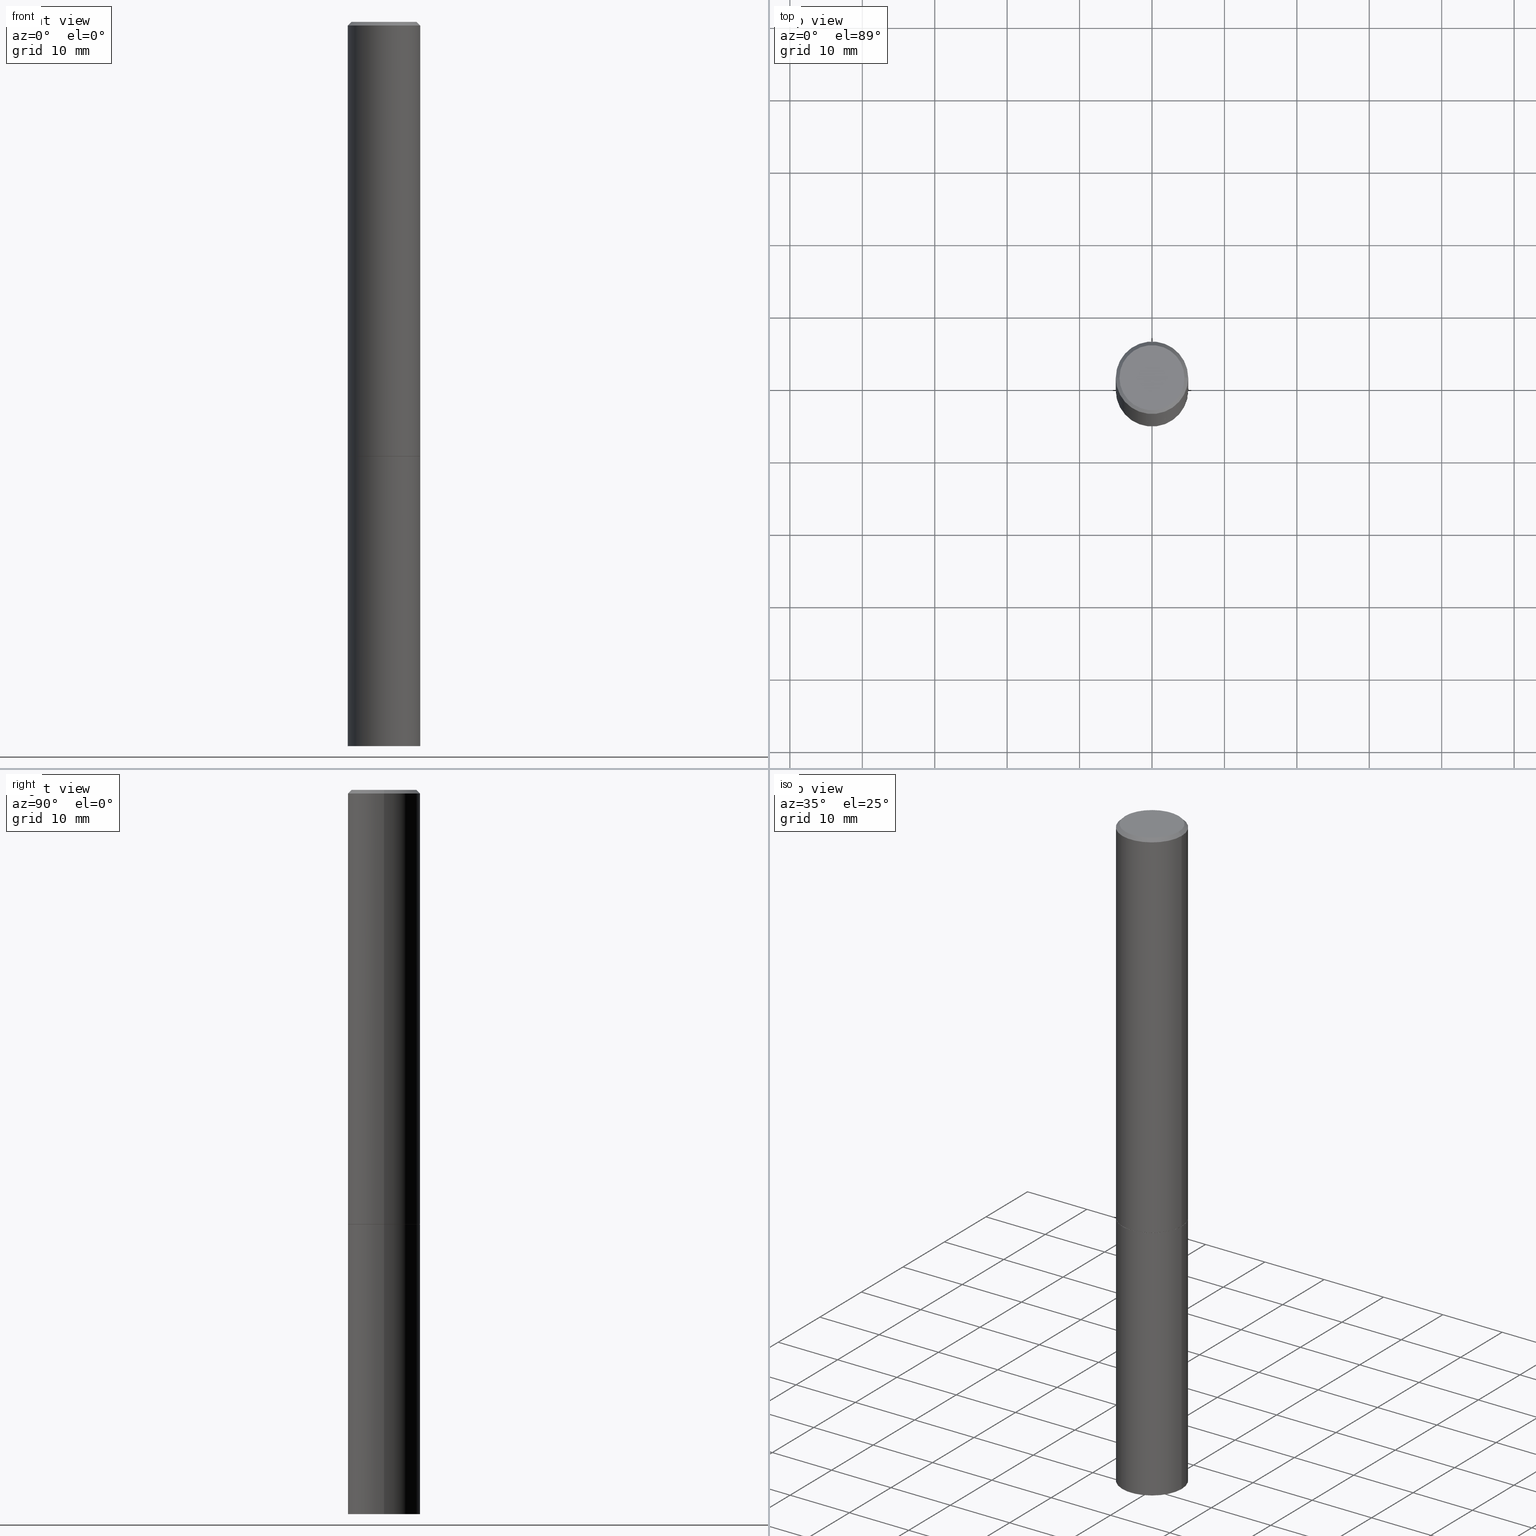
[diagram: canonical four-view strip — front | top / right | iso, engineering-drawing reading convention]
A machine part, canonical four-view strip (front | top / right | iso — engineering-drawing reading convention). The complete STEP part file that produces these views, byte-faithful:
ISO-10303-21;
HEADER;
FILE_DESCRIPTION (( 'STEP AP203' ),
    '1' );
FILE_NAME ('74422.STEP',
    '2024-02-29T10:22:29',
    ( '' ),
    ( '' ),
    'SwSTEP 2.0',
    'SolidWorks 2023',
    '' );
FILE_SCHEMA (( 'CONFIG_CONTROL_DESIGN' ));
ENDSEC;

DATA;
#1 = DIRECTION ( 'NONE',  ( -2.445468806185136877E-29, 3.491481338843145188E-15, 1.000000000000000000 ) ) ;
#2 = AXIS2_PLACEMENT_3D ( 'NONE', #246, #353, #355 ) ;
#3 = DIRECTION ( 'NONE',  ( -1.000000000000000000, 6.982962677686265922E-15, -4.876176775795935793E-29 ) ) ;
#4 = DIRECTION ( 'NONE',  ( 1.000000000000000000, -6.982962677686268288E-15, 0.000000000000000000 ) ) ;
#5 = CARTESIAN_POINT ( 'NONE',  ( 5.774240945164344150E-29, -8.244085737276433464E-15, -2.361199999999999743 ) ) ;
#6 = VECTOR ( 'NONE', #161, 39.37007874015748143 ) ;
#7 = ADVANCED_FACE ( 'NONE', ( #336 ), #92, .F. ) ;
#8 = APPROVAL_STATUS ( 'not_yet_approved' ) ;
#9 = FACE_OUTER_BOUND ( 'NONE', #162, .T. ) ;
#10 = CIRCLE ( 'NONE', #129, 0.1768499999999997574 ) ;
#11 = CC_DESIGN_DATE_AND_TIME_ASSIGNMENT ( #264, #97, ( #200 ) ) ;
#12 = DIRECTION ( 'NONE',  ( 1.000000000000000000, -6.982962677686266711E-15, 0.000000000000000000 ) ) ;
#13 = ORIENTED_EDGE ( 'NONE', *, *, #282, .T. ) ;
#14 = CARTESIAN_POINT ( 'NONE',  ( 0.000000000000000000, 0.000000000000000000, 0.000000000000000000 ) ) ;
#15 = CARTESIAN_POINT ( 'NONE',  ( 0.000000000000000000, 0.000000000000000000, 0.000000000000000000 ) ) ;
#16 = ORIENTED_EDGE ( 'NONE', *, *, #182, .T. ) ;
#17 = CIRCLE ( 'NONE', #143, 0.1968499999999997474 ) ;
#18 = CC_DESIGN_SECURITY_CLASSIFICATION ( #228, ( #192 ) ) ;
#19 = CARTESIAN_POINT ( 'NONE',  ( 4.890937612370284544E-31, -6.982962677686307633E-17, -0.02000000000000004552 ) ) ;
#20 = PRODUCT_DEFINITION_SHAPE ( 'NONE', 'NONE',  #200 ) ;
#21 = CARTESIAN_POINT ( 'NONE',  ( -0.1968499999999998307, 1.398703375343756013E-15, -9.682923725166775270E-30 ) ) ;
#22 = ORIENTED_EDGE ( 'NONE', *, *, #25, .T. ) ;
#23 = CARTESIAN_POINT ( 'NONE',  ( 5.774240945164344150E-29, -8.244085737276433464E-15, -2.361199999999999743 ) ) ;
#24 = CYLINDRICAL_SURFACE ( 'NONE', #253, 0.1968500000000000250 ) ;
#25 = EDGE_CURVE ( 'NONE', #173, #247, #142, .T. ) ;
#26 = PERSON_AND_ORGANIZATION_ROLE ( 'design_owner' ) ;
#27 = ORIENTED_EDGE ( 'NONE', *, *, #107, .T. ) ;
#28 = ORIENTED_EDGE ( 'NONE', *, *, #361, .F. ) ;
#29 = CARTESIAN_POINT ( 'NONE',  ( 1.234936949548814420E-15, 0.1768499999999997574, -6.153342185293592648E-16 ) ) ;
#30 =( GEOMETRIC_REPRESENTATION_CONTEXT ( 3 ) GLOBAL_UNCERTAINTY_ASSIGNED_CONTEXT ( ( #286 ) ) GLOBAL_UNIT_ASSIGNED_CONTEXT ( ( #339, #331, #195 ) ) REPRESENTATION_CONTEXT ( 'NONE', 'WORKASPACE' ) );
#31 = LOCAL_TIME ( 5, 22, 29.00000000000000000, #351 ) ;
#32 = EDGE_LOOP ( 'NONE', ( #110, #298, #141, #338 ) ) ;
#33 = DIRECTION ( 'NONE',  ( -2.445468806185136597E-29, 3.491481338843145583E-15, 1.000000000000000000 ) ) ;
#34 = DIRECTION ( 'NONE',  ( -2.445468806185136597E-29, 3.491481338843145583E-15, 1.000000000000000000 ) ) ;
#35 = PERSON_AND_ORGANIZATION_ROLE ( 'creator' ) ;
#36 = CARTESIAN_POINT ( 'NONE',  ( 0.1958499999999999963, -9.615190459040133643E-15, -2.362199999999999633 ) ) ;
#37 = DATE_AND_TIME ( #345, #203 ) ;
#38 = AXIS2_PLACEMENT_3D ( 'NONE', #231, #248, #343 ) ;
#39 = LINE ( 'NONE', #21, #174 ) ;
#40 = PERSON_AND_ORGANIZATION_ROLE ( 'classification_officer' ) ;
#41 = FACE_OUTER_BOUND ( 'NONE', #166, .T. ) ;
#42 = LINE ( 'NONE', #184, #263 ) ;
#43 = ORIENTED_EDGE ( 'NONE', *, *, #180, .T. ) ;
#44 = FACE_OUTER_BOUND ( 'NONE', #101, .T. ) ;
#45 = AXIS2_PLACEMENT_3D ( 'NONE', #15, #267, #71 ) ;
#46 = DIRECTION ( 'NONE',  ( 1.000000000000000000, -6.982962677686268288E-15, 0.000000000000000000 ) ) ;
#47 = PERSON_AND_ORGANIZATION ( #98, #242 ) ;
#48 = CC_DESIGN_PERSON_AND_ORGANIZATION_ASSIGNMENT ( #149, #185, ( #192 ) ) ;
#49 = FACE_OUTER_BOUND ( 'NONE', #32, .T. ) ;
#50 = APPROVAL_STATUS ( 'not_yet_approved' ) ;
#51 = FACE_OUTER_BOUND ( 'NONE', #56, .T. ) ;
#52 = CIRCLE ( 'NONE', #38, 0.1968500000000000250 ) ;
#53 = ADVANCED_FACE ( 'NONE', ( #51 ), #278, .F. ) ;
#54 = EDGE_LOOP ( 'NONE', ( #366, #55, #332, #249 ) ) ;
#55 = ORIENTED_EDGE ( 'NONE', *, *, #295, .T. ) ;
#56 = EDGE_LOOP ( 'NONE', ( #359, #227 ) ) ;
#57 = AXIS2_PLACEMENT_3D ( 'NONE', #245, #243, #46 ) ;
#58 = DIRECTION ( 'NONE',  ( 2.445468806185136597E-29, -3.491481338843145583E-15, -1.000000000000000000 ) ) ;
#59 = CARTESIAN_POINT ( 'NONE',  ( -0.1768499999999997574, 1.269851762937245478E-15, 4.268512490091652920E-18 ) ) ;
#60 = CARTESIAN_POINT ( 'NONE',  ( 1.374596203102637849E-15, 0.1968499999999862582, -3.937000000000000721 ) ) ;
#61 = FACE_OUTER_BOUND ( 'NONE', #118, .T. ) ;
#62 = EDGE_CURVE ( 'NONE', #281, #106, #285, .T. ) ;
#63 = DIRECTION ( 'NONE',  ( 0.000000000000000000, 0.000000000000000000, 1.000000000000000000 ) ) ;
#64 = DIRECTION ( 'NONE',  ( 1.000000000000000000, -6.982962677686268288E-15, 0.000000000000000000 ) ) ;
#65 = APPROVAL_ROLE ( '' ) ;
#66 = AXIS2_PLACEMENT_3D ( 'NONE', #60, #223, #333 ) ;
#67 = APPROVAL_DATE_TIME ( #188, #274 ) ;
#68 = CARTESIAN_POINT ( 'NONE',  ( 5.776686413970529753E-29, -8.247577218615278049E-15, -2.362199999999999633 ) ) ;
#69 = COORDINATED_UNIVERSAL_TIME_OFFSET ( 5, 0, .BEHIND. ) ;
#70 = AXIS2_PLACEMENT_3D ( 'NONE', #122, #150, #311 ) ;
#71 = DIRECTION ( 'NONE',  ( 1.000000000000000000, -6.982962677686265922E-15, 4.876176775795935793E-29 ) ) ;
#72 = DIRECTION ( 'NONE',  ( -2.445468806185136597E-29, 3.491481338843145583E-15, 1.000000000000000000 ) ) ;
#73 = ADVANCED_FACE ( 'NONE', ( #49 ), #24, .T. ) ;
#74 = DIMENSIONAL_EXPONENTS ( 1.000000000000000000, 0.000000000000000000, 0.000000000000000000, 0.000000000000000000, 0.000000000000000000, 0.000000000000000000, 0.000000000000000000 ) ;
#75 = DIRECTION ( 'NONE',  ( 1.000000000000000000, -6.982962677686268288E-15, 0.000000000000000000 ) ) ;
#76 = VERTEX_POINT ( 'NONE', #334 ) ;
#77 = AXIS2_PLACEMENT_3D ( 'NONE', #287, #34, #208 ) ;
#78 = DIRECTION ( 'NONE',  ( -2.445468806185136597E-29, 3.491481338843145583E-15, 1.000000000000000000 ) ) ;
#79 = VECTOR ( 'NONE', #187, 39.37007874015748143 ) ;
#80 = VERTEX_POINT ( 'NONE', #224 ) ;
#81 = CIRCLE ( 'NONE', #124, 0.1958499999999999963 ) ;
#82 = CC_DESIGN_PERSON_AND_ORGANIZATION_ASSIGNMENT ( #314, #40, ( #228 ) ) ;
#83 = EDGE_CURVE ( 'NONE', #272, #169, #88, .T. ) ;
#84 = ORIENTED_EDGE ( 'NONE', *, *, #164, .F. ) ;
#85 = APPROVAL ( #8, 'UNSPECIFIED' ) ;
#86 = DIRECTION ( 'NONE',  ( -1.000000000000000000, 6.982962677686266711E-15, 0.000000000000000000 ) ) ;
#87 = ORIENTED_EDGE ( 'NONE', *, *, #280, .T. ) ;
#88 = LINE ( 'NONE', #197, #236 ) ;
#89 = AXIS2_PLACEMENT_3D ( 'NONE', #256, #114, #3 ) ;
#90 = AXIS2_PLACEMENT_3D ( 'NONE', #5, #121, #344 ) ;
#91 = ADVANCED_FACE ( 'NONE', ( #346 ), #181, .T. ) ;
#92 = PLANE ( 'NONE',  #147 ) ;
#93 = ORIENTED_EDGE ( 'NONE', *, *, #62, .T. ) ;
#94 = DIRECTION ( 'NONE',  ( -2.445468806185136597E-29, 3.491481338843145583E-15, 1.000000000000000000 ) ) ;
#95 = PRODUCT_RELATED_PRODUCT_CATEGORY ( 'detail', '', ( #155 ) ) ;
#96 = CC_DESIGN_PERSON_AND_ORGANIZATION_ASSIGNMENT ( #47, #26, ( #155 ) ) ;
#97 = DATE_TIME_ROLE ( 'creation_date' ) ;
#98 = PERSON ( 'UNSPECIFIED', 'UNSPECIFIED', 'UNSPECIFIED', ('UNSPECIFIED'), ('UNSPECIFIED'), ('UNSPECIFIED') ) ;
#99 = DATE_TIME_ROLE ( 'classification_date' ) ;
#100 = FACE_OUTER_BOUND ( 'NONE', #337, .T. ) ;
#101 = EDGE_LOOP ( 'NONE', ( #144, #306 ) ) ;
#102 = APPROVAL_STATUS ( 'not_yet_approved' ) ;
#103 = AXIS2_PLACEMENT_3D ( 'NONE', #151, #72, #12 ) ;
#104 = CARTESIAN_POINT ( 'NONE',  ( -0.1968499999999997474, 1.304766576325676732E-15, -0.02000000000000004552 ) ) ;
#105 = CYLINDRICAL_SURFACE ( 'NONE', #45, 0.1968500000000000250 ) ;
#106 = VERTEX_POINT ( 'NONE', #36 ) ;
#107 = EDGE_CURVE ( 'NONE', #160, #76, #340, .T. ) ;
#108 = DIRECTION ( 'NONE',  ( 1.000000000000000000, -6.982962677686266711E-15, 4.875932113059884735E-29 ) ) ;
#109 = VECTOR ( 'NONE', #313, 39.37007874015748143 ) ;
#110 = ORIENTED_EDGE ( 'NONE', *, *, #25, .F. ) ;
#111 = LENGTH_MEASURE_WITH_UNIT ( LENGTH_MEASURE( 0.02539999999999999897 ), #250 );
#112 = DIRECTION ( 'NONE',  ( 1.000000000000000000, -6.982962677686265922E-15, 4.876176775795935793E-29 ) ) ;
#113 = MANIFOLD_SOLID_BREP ( 'Body-Move/Copy2[1]', #262 ) ;
#114 = DIRECTION ( 'NONE',  ( 2.438088387897960049E-29, -3.491481338843145188E-15, -1.000000000000000000 ) ) ;
#115 = EDGE_LOOP ( 'NONE', ( #84, #191, #133, #279 ) ) ;
#116 = ADVANCED_FACE ( 'NONE', ( #9 ), #258, .T. ) ;
#117 = ORIENTED_EDGE ( 'NONE', *, *, #134, .T. ) ;
#118 = EDGE_LOOP ( 'NONE', ( #322, #93, #13, #28 ) ) ;
#119 = VECTOR ( 'NONE', #218, 39.37007874015748143 ) ;
#120 = MECHANICAL_CONTEXT ( 'NONE', #293, 'mechanical' ) ;
#121 = DIRECTION ( 'NONE',  ( -2.445468806185136597E-29, 3.491481338843145583E-15, 1.000000000000000000 ) ) ;
#122 = CARTESIAN_POINT ( 'NONE',  ( 4.890937612370284544E-31, -6.982962677686307633E-17, -0.02000000000000004552 ) ) ;
#123 = PERSON_AND_ORGANIZATION ( #98, #242 ) ;
#124 = AXIS2_PLACEMENT_3D ( 'NONE', #294, #211, #75 ) ;
#125 = PERSON_AND_ORGANIZATION ( #98, #242 ) ;
#126 = FACE_OUTER_BOUND ( 'NONE', #229, .T. ) ;
#127 = EDGE_LOOP ( 'NONE', ( #230, #308 ) ) ;
#128 = FACE_OUTER_BOUND ( 'NONE', #302, .T. ) ;
#129 = AXIS2_PLACEMENT_3D ( 'NONE', #342, #94, #204 ) ;
#130 = CARTESIAN_POINT ( 'NONE',  ( 0.1968499999999999694, -9.618681940378976650E-15, -2.361199999999999743 ) ) ;
#131 = CARTESIAN_POINT ( 'NONE',  ( -0.1958499999999999963, -6.855979270629121269E-15, -2.362199999999999633 ) ) ;
#132 = CARTESIAN_POINT ( 'NONE',  ( 0.1968500000000000250, -9.622173421717819657E-15, -2.362199999999999633 ) ) ;
#133 = ORIENTED_EDGE ( 'NONE', *, *, #259, .T. ) ;
#134 = EDGE_CURVE ( 'NONE', #139, #219, #205, .T. ) ;
#135 = APPLICATION_PROTOCOL_DEFINITION ( 'international standard', 'config_control_design', 1994, #232 ) ;
#136 = AXIS2_PLACEMENT_3D ( 'NONE', #23, #175, #328 ) ;
#137 = CARTESIAN_POINT ( 'NONE',  ( 0.000000000000000000, 0.000000000000000000, 0.000000000000000000 ) ) ;
#138 = FACE_OUTER_BOUND ( 'NONE', #54, .T. ) ;
#139 = VERTEX_POINT ( 'NONE', #59 ) ;
#140 = EDGE_CURVE ( 'NONE', #139, #172, #10, .T. ) ;
#141 = ORIENTED_EDGE ( 'NONE', *, *, #83, .T. ) ;
#142 = LINE ( 'NONE', #251, #290 ) ;
#143 = AXIS2_PLACEMENT_3D ( 'NONE', #19, #301, #265 ) ;
#144 = ORIENTED_EDGE ( 'NONE', *, *, #280, .F. ) ;
#145 = APPLICATION_PROTOCOL_DEFINITION ( 'international standard', 'config_control_design', 1994, #293 ) ;
#146 = CARTESIAN_POINT ( 'NONE',  ( 5.776686413970529753E-29, -8.247577218615278049E-15, -2.362199999999999633 ) ) ;
#147 = AXIS2_PLACEMENT_3D ( 'NONE', #29, #196, #304 ) ;
#148 = COORDINATED_UNIVERSAL_TIME_OFFSET ( 5, 0, .BEHIND. ) ;
#149 = PERSON_AND_ORGANIZATION ( #98, #242 ) ;
#150 = DIRECTION ( 'NONE',  ( 2.445468806185136597E-29, -3.491481338843145583E-15, -1.000000000000000000 ) ) ;
#151 = CARTESIAN_POINT ( 'NONE',  ( 4.890937612370284544E-31, -6.982962677686307633E-17, -0.02000000000000004552 ) ) ;
#152 = APPROVAL ( #50, 'UNSPECIFIED' ) ;
#153 = ORIENTED_EDGE ( 'NONE', *, *, #83, .F. ) ;
#154 = CALENDAR_DATE ( 2024, 29, 2 ) ;
#155 = PRODUCT ( '74422', '74422', '', ( #120 ) ) ;
#156 = ADVANCED_FACE ( 'NONE', ( #61 ), #276, .T. ) ;
#157 = CARTESIAN_POINT ( 'NONE',  ( -0.1968500000000000250, -9.598066249476613733E-15, -3.937000000000000277 ) ) ;
#158 = DATE_AND_TIME ( #210, #299 ) ;
#159 = LINE ( 'NONE', #131, #79 ) ;
#160 = VERTEX_POINT ( 'NONE', #130 ) ;
#161 = DIRECTION ( 'NONE',  ( 0.7071067811865464625, -7.319954787623252890E-15, -0.7071067811865485719 ) ) ;
#162 = EDGE_LOOP ( 'NONE', ( #198, #307, #117, #43 ) ) ;
#163 = DIRECTION ( 'NONE',  ( 1.000000000000000000, -6.982962677686267499E-15, 0.000000000000000000 ) ) ;
#164 = EDGE_CURVE ( 'NONE', #76, #219, #39, .T. ) ;
#165 = CARTESIAN_POINT ( 'NONE',  ( 0.000000000000000000, 0.000000000000000000, 0.000000000000000000 ) ) ;
#166 = EDGE_LOOP ( 'NONE', ( #27, #275, #214, #222 ) ) ;
#167 = APPROVAL_ROLE ( '' ) ;
#168 = CIRCLE ( 'NONE', #226, 0.1968500000000000250 ) ;
#169 = VERTEX_POINT ( 'NONE', #132 ) ;
#170 = ORIENTED_EDGE ( 'NONE', *, *, #107, .F. ) ;
#171 = ADVANCED_FACE ( 'NONE', ( #44 ), #241, .F. ) ;
#172 = VERTEX_POINT ( 'NONE', #321 ) ;
#173 = VERTEX_POINT ( 'NONE', #157 ) ;
#174 = VECTOR ( 'NONE', #216, 39.37007874015748143 ) ;
#175 = DIRECTION ( 'NONE',  ( -2.445468806185136597E-29, 3.491481338843145583E-15, 1.000000000000000000 ) ) ;
#176 = DIRECTION ( 'NONE',  ( 1.000000000000000000, 0.000000000000000000, 0.000000000000000000 ) ) ;
#177 = EDGE_CURVE ( 'NONE', #169, #247, #221, .T. ) ;
#178 = CONICAL_SURFACE ( 'NONE', #57, 0.1958499999999999963, 0.7853981633973970977 ) ;
#179 = APPROVAL_PERSON_ORGANIZATION ( #123, #274, #65 ) ;
#180 = EDGE_CURVE ( 'NONE', #219, #80, #17, .T. ) ;
#181 = CYLINDRICAL_SURFACE ( 'NONE', #77, 0.1968499999999998307 ) ;
#182 = EDGE_CURVE ( 'NONE', #281, #76, #159, .T. ) ;
#183 = DESIGN_CONTEXT ( 'detailed design', #232, 'design' ) ;
#184 = CARTESIAN_POINT ( 'NONE',  ( 0.1958499999999999963, -9.615190459040133643E-15, -2.362199999999999633 ) ) ;
#185 = PERSON_AND_ORGANIZATION_ROLE ( 'design_supplier' ) ;
#186 = CC_DESIGN_APPROVAL ( #152, ( #200 ) ) ;
#187 = DIRECTION ( 'NONE',  ( -0.7071067811865112684, 7.493145998870223209E-15, 0.7071067811865837660 ) ) ;
#188 = DATE_AND_TIME ( #237, #31 ) ;
#189 = DIRECTION ( 'NONE',  ( -2.445468806185136597E-29, 3.491481338843145583E-15, 1.000000000000000000 ) ) ;
#190 = CYLINDRICAL_SURFACE ( 'NONE', #270, 0.1968499999999998307 ) ;
#191 = ORIENTED_EDGE ( 'NONE', *, *, #361, .T. ) ;
#192 = PRODUCT_DEFINITION_FORMATION_WITH_SPECIFIED_SOURCE ( 'ANY', '', #155, .NOT_KNOWN. ) ;
#193 = CARTESIAN_POINT ( 'NONE',  ( 5.776686413970529753E-29, -8.247577218615278049E-15, -2.362199999999999633 ) ) ;
#194 = ADVANCED_FACE ( 'NONE', ( #100 ), #178, .T. ) ;
#195 =( NAMED_UNIT ( * ) SI_UNIT ( $, .STERADIAN. ) SOLID_ANGLE_UNIT ( ) );
#196 = DIRECTION ( 'NONE',  ( 2.438088387897960049E-29, -3.491481338843145188E-15, -1.000000000000000000 ) ) ;
#197 = CARTESIAN_POINT ( 'NONE',  ( 0.1968500000000000250, -1.374596203102541608E-15, 9.598753983154300858E-30 ) ) ;
#198 = ORIENTED_EDGE ( 'NONE', *, *, #295, .F. ) ;
#199 = ORIENTED_EDGE ( 'NONE', *, *, #234, .T. ) ;
#200 = PRODUCT_DEFINITION ( 'UNKNOWN', '', #192, #183 ) ;
#201 = DIRECTION ( 'NONE',  ( -2.445468806185136877E-29, 3.491481338843145188E-15, 1.000000000000000000 ) ) ;
#202 = CIRCLE ( 'NONE', #283, 0.1968500000000000250 ) ;
#203 = LOCAL_TIME ( 5, 22, 29.00000000000000000, #215 ) ;
#204 = DIRECTION ( 'NONE',  ( 1.000000000000000000, -6.982962677686266711E-15, 4.875932113059884735E-29 ) ) ;
#205 = LINE ( 'NONE', #261, #109 ) ;
#206 = AXIS2_PLACEMENT_3D ( 'NONE', #364, #58, #86 ) ;
#207 = APPROVAL_DATE_TIME ( #37, #85 ) ;
#208 = DIRECTION ( 'NONE',  ( 1.000000000000000000, -6.982962677686266711E-15, 4.876176775795935793E-29 ) ) ;
#209 = CC_DESIGN_PERSON_AND_ORGANIZATION_ASSIGNMENT ( #260, #35, ( #192 ) ) ;
#210 = CALENDAR_DATE ( 2024, 29, 2 ) ;
#211 = DIRECTION ( 'NONE',  ( -2.445468806185136597E-29, 3.491481338843145583E-15, 1.000000000000000000 ) ) ;
#212 = APPROVAL_ROLE ( '' ) ;
#213 = CARTESIAN_POINT ( 'NONE',  ( 0.1968499999999998307, -1.374596203102540425E-15, 9.598753983154291049E-30 ) ) ;
#214 = ORIENTED_EDGE ( 'NONE', *, *, #312, .F. ) ;
#215 = COORDINATED_UNIVERSAL_TIME_OFFSET ( 5, 0, .BEHIND. ) ;
#216 = DIRECTION ( 'NONE',  ( -2.445468806185136877E-29, 3.491481338843145188E-15, 1.000000000000000000 ) ) ;
#217 = ORIENTED_EDGE ( 'NONE', *, *, #330, .F. ) ;
#218 = DIRECTION ( 'NONE',  ( -2.445468806185136877E-29, 3.491481338843145188E-15, 1.000000000000000000 ) ) ;
#219 = VERTEX_POINT ( 'NONE', #104 ) ;
#220 = LINE ( 'NONE', #213, #119 ) ;
#221 = CIRCLE ( 'NONE', #326, 0.1968500000000000250 ) ;
#222 = ORIENTED_EDGE ( 'NONE', *, *, #259, .F. ) ;
#223 = DIRECTION ( 'NONE',  ( 2.438088387897960049E-29, -3.491481338843145188E-15, -1.000000000000000000 ) ) ;
#224 = CARTESIAN_POINT ( 'NONE',  ( 0.1968499999999997474, -1.420318657638187347E-15, -0.02000000000000004552 ) ) ;
#225 = AXIS2_PLACEMENT_3D ( 'NONE', #252, #257, #4 ) ;
#226 = AXIS2_PLACEMENT_3D ( 'NONE', #68, #358, #268 ) ;
#227 = ORIENTED_EDGE ( 'NONE', *, *, #244, .T. ) ;
#228 = SECURITY_CLASSIFICATION ( '', '', #317 ) ;
#229 = EDGE_LOOP ( 'NONE', ( #199, #22, #284, #153 ) ) ;
#230 = ORIENTED_EDGE ( 'NONE', *, *, #140, .T. ) ;
#231 = CARTESIAN_POINT ( 'NONE',  ( 9.627810689950883669E-29, -1.374596203102546341E-14, -3.937000000000000277 ) ) ;
#232 = APPLICATION_CONTEXT ( 'configuration controlled 3d designs of mechanical parts and assemblies' ) ;
#233 = APPROVAL_DATE_TIME ( #158, #152 ) ;
#234 = EDGE_CURVE ( 'NONE', #272, #173, #202, .T. ) ;
#235 = CC_DESIGN_PERSON_AND_ORGANIZATION_ASSIGNMENT ( #238, #240, ( #200 ) ) ;
#236 = VECTOR ( 'NONE', #1, 39.37007874015748143 ) ;
#237 = CALENDAR_DATE ( 2024, 29, 2 ) ;
#238 = PERSON_AND_ORGANIZATION ( #98, #242 ) ;
#239 = LINE ( 'NONE', #289, #6 ) ;
#240 = PERSON_AND_ORGANIZATION_ROLE ( 'creator' ) ;
#241 = PLANE ( 'NONE',  #2 ) ;
#242 = ORGANIZATION ( 'UNSPECIFIED', 'UNSPECIFIED', '' ) ;
#243 = DIRECTION ( 'NONE',  ( -2.445468806185136597E-29, 3.491481338843145583E-15, 1.000000000000000000 ) ) ;
#244 = EDGE_CURVE ( 'NONE', #247, #169, #168, .T. ) ;
#245 = CARTESIAN_POINT ( 'NONE',  ( 5.776686413970529753E-29, -8.247577218615278049E-15, -2.362199999999999633 ) ) ;
#246 = CARTESIAN_POINT ( 'NONE',  ( 5.776686413970529753E-29, -8.247577218615278049E-15, -2.362199999999999633 ) ) ;
#247 = VERTEX_POINT ( 'NONE', #273 ) ;
#248 = DIRECTION ( 'NONE',  ( -2.445468806185136597E-29, 3.491481338843145583E-15, 1.000000000000000000 ) ) ;
#249 = ORIENTED_EDGE ( 'NONE', *, *, #134, .F. ) ;
#250 =( LENGTH_UNIT ( ) NAMED_UNIT ( * ) SI_UNIT ( $, .METRE. ) );
#251 = CARTESIAN_POINT ( 'NONE',  ( -0.1968500000000000250, 1.398703375343757393E-15, -9.682923725166783677E-30 ) ) ;
#252 = CARTESIAN_POINT ( 'NONE',  ( 5.776686413970529753E-29, -8.247577218615278049E-15, -2.362199999999999633 ) ) ;
#253 = AXIS2_PLACEMENT_3D ( 'NONE', #137, #365, #112 ) ;
#254 = EDGE_CURVE ( 'NONE', #172, #139, #319, .T. ) ;
#255 = AXIS2_PLACEMENT_3D ( 'NONE', #165, #63, #176 ) ;
#256 = CARTESIAN_POINT ( 'NONE',  ( 1.374596203102599195E-15, 0.1968499999999917538, -2.362200000000000522 ) ) ;
#257 = DIRECTION ( 'NONE',  ( -2.445468806185136597E-29, 3.491481338843145583E-15, 1.000000000000000000 ) ) ;
#258 = CONICAL_SURFACE ( 'NONE', #70, 0.1968499999999997474, 0.7853981633974468357 ) ;
#259 = EDGE_CURVE ( 'NONE', #160, #80, #220, .T. ) ;
#260 = PERSON_AND_ORGANIZATION ( #98, #242 ) ;
#261 = CARTESIAN_POINT ( 'NONE',  ( -0.1968499999999997474, 1.304766576325676732E-15, -0.02000000000000004552 ) ) ;
#262 = CLOSED_SHELL ( 'NONE', ( #320, #327, #53, #73 ) ) ;
#263 = VECTOR ( 'NONE', #318, 39.37007874015748143 ) ;
#264 = DATE_AND_TIME ( #315, #347 ) ;
#265 = DIRECTION ( 'NONE',  ( 1.000000000000000000, -6.982962677686266711E-15, 0.000000000000000000 ) ) ;
#266 = COORDINATED_UNIVERSAL_TIME_OFFSET ( 5, 0, .BEHIND. ) ;
#267 = DIRECTION ( 'NONE',  ( -2.445468806185136597E-29, 3.491481338843145583E-15, 1.000000000000000000 ) ) ;
#268 = DIRECTION ( 'NONE',  ( 1.000000000000000000, -6.982962677686262766E-15, 0.000000000000000000 ) ) ;
#269 = ORIENTED_EDGE ( 'NONE', *, *, #234, .F. ) ;
#270 = AXIS2_PLACEMENT_3D ( 'NONE', #14, #324, #297 ) ;
#271 = DIRECTION ( 'NONE',  ( -2.445468806185136597E-29, 3.491481338843145583E-15, 1.000000000000000000 ) ) ;
#272 = VERTEX_POINT ( 'NONE', #325 ) ;
#273 = CARTESIAN_POINT ( 'NONE',  ( -0.1968500000000000250, -9.598066249476613733E-15, -2.362199999999999633 ) ) ;
#274 = APPROVAL ( #102, 'UNSPECIFIED' ) ;
#275 = ORIENTED_EDGE ( 'NONE', *, *, #164, .T. ) ;
#276 = CONICAL_SURFACE ( 'NONE', #335, 0.1958499999999999963, 0.7853981633973970977 ) ;
#277 = CC_DESIGN_APPROVAL ( #85, ( #228 ) ) ;
#278 = PLANE ( 'NONE',  #89 ) ;
#279 = ORIENTED_EDGE ( 'NONE', *, *, #180, .F. ) ;
#280 = EDGE_CURVE ( 'NONE', #106, #281, #81, .T. ) ;
#281 = VERTEX_POINT ( 'NONE', #316 ) ;
#282 = EDGE_CURVE ( 'NONE', #106, #160, #42, .T. ) ;
#283 = AXIS2_PLACEMENT_3D ( 'NONE', #296, #78, #163 ) ;
#284 = ORIENTED_EDGE ( 'NONE', *, *, #177, .F. ) ;
#285 = CIRCLE ( 'NONE', #225, 0.1958499999999999963 ) ;
#286 = UNCERTAINTY_MEASURE_WITH_UNIT (LENGTH_MEASURE( 1.000000000000000082E-05 ), #339, 'distance_accuracy_value', 'NONE');
#287 = CARTESIAN_POINT ( 'NONE',  ( 0.000000000000000000, 0.000000000000000000, 0.000000000000000000 ) ) ;
#288 = DATE_AND_TIME ( #154, #349 ) ;
#289 = CARTESIAN_POINT ( 'NONE',  ( 0.1968499999999997474, -1.420318657638187347E-15, -0.02000000000000004552 ) ) ;
#290 = VECTOR ( 'NONE', #201, 39.37007874015748143 ) ;
#291 = CONICAL_SURFACE ( 'NONE', #206, 0.1968499999999997474, 0.7853981633974468357 ) ;
#292 = SHAPE_DEFINITION_REPRESENTATION ( #20, #329 ) ;
#293 = APPLICATION_CONTEXT ( 'configuration controlled 3d designs of mechanical parts and assemblies' ) ;
#294 = CARTESIAN_POINT ( 'NONE',  ( 5.776686413970529753E-29, -8.247577218615278049E-15, -2.362199999999999633 ) ) ;
#295 = EDGE_CURVE ( 'NONE', #172, #80, #239, .T. ) ;
#296 = CARTESIAN_POINT ( 'NONE',  ( 9.627810689950883669E-29, -1.374596203102546341E-14, -3.937000000000000277 ) ) ;
#297 = DIRECTION ( 'NONE',  ( 1.000000000000000000, -6.982962677686266711E-15, 4.876176775795935793E-29 ) ) ;
#298 = ORIENTED_EDGE ( 'NONE', *, *, #330, .T. ) ;
#299 = LOCAL_TIME ( 5, 22, 29.00000000000000000, #148 ) ;
#300 = APPROVAL_PERSON_ORGANIZATION ( #125, #85, #212 ) ;
#301 = DIRECTION ( 'NONE',  ( -2.445468806185136597E-29, 3.491481338843145583E-15, 1.000000000000000000 ) ) ;
#302 = EDGE_LOOP ( 'NONE', ( #269, #217 ) ) ;
#303 = PERSON_AND_ORGANIZATION ( #98, #242 ) ;
#304 = DIRECTION ( 'NONE',  ( -1.000000000000000000, 6.982962677686265922E-15, -4.876176775795935793E-29 ) ) ;
#305 = PLANE ( 'NONE',  #66 ) ;
#306 = ORIENTED_EDGE ( 'NONE', *, *, #62, .F. ) ;
#307 = ORIENTED_EDGE ( 'NONE', *, *, #140, .F. ) ;
#308 = ORIENTED_EDGE ( 'NONE', *, *, #254, .T. ) ;
#309 = AXIS2_PLACEMENT_3D ( 'NONE', #360, #189, #108 ) ;
#310 = CC_DESIGN_APPROVAL ( #274, ( #192 ) ) ;
#311 = DIRECTION ( 'NONE',  ( -1.000000000000000000, 6.982962677686266711E-15, 0.000000000000000000 ) ) ;
#312 = EDGE_CURVE ( 'NONE', #80, #219, #363, .T. ) ;
#313 = DIRECTION ( 'NONE',  ( -0.7071067811865464625, 2.468850131082245622E-15, -0.7071067811865485719 ) ) ;
#314 = PERSON_AND_ORGANIZATION ( #98, #242 ) ;
#315 = CALENDAR_DATE ( 2024, 29, 2 ) ;
#316 = CARTESIAN_POINT ( 'NONE',  ( -0.1958499999999999963, -6.850680816280899656E-15, -2.362199999999999633 ) ) ;
#317 = SECURITY_CLASSIFICATION_LEVEL ( 'unclassified' ) ;
#318 = DIRECTION ( 'NONE',  ( 0.7071067811865112684, -2.468850131081876830E-15, 0.7071067811865837660 ) ) ;
#319 = CIRCLE ( 'NONE', #309, 0.1768499999999997574 ) ;
#320 = ADVANCED_FACE ( 'NONE', ( #126 ), #105, .T. ) ;
#321 = CARTESIAN_POINT ( 'NONE',  ( 0.1768499999999997574, -1.316798864272040366E-15, 4.268512490109333727E-18 ) ) ;
#322 = ORIENTED_EDGE ( 'NONE', *, *, #182, .F. ) ;
#323 = ADVANCED_FACE ( 'NONE', ( #41 ), #190, .T. ) ;
#324 = DIRECTION ( 'NONE',  ( -2.445468806185136597E-29, 3.491481338843145583E-15, 1.000000000000000000 ) ) ;
#325 = CARTESIAN_POINT ( 'NONE',  ( 0.1968500000000000250, -1.512055823412800660E-14, -3.937000000000000277 ) ) ;
#326 = AXIS2_PLACEMENT_3D ( 'NONE', #193, #271, #362 ) ;
#327 = ADVANCED_FACE ( 'NONE', ( #128 ), #305, .T. ) ;
#328 = DIRECTION ( 'NONE',  ( 1.000000000000000000, -6.982962677686269866E-15, 0.000000000000000000 ) ) ;
#329 = ADVANCED_BREP_SHAPE_REPRESENTATION ( '74422', ( #113, #348, #255 ), #30 ) ;
#330 = EDGE_CURVE ( 'NONE', #173, #272, #52, .T. ) ;
#331 =( NAMED_UNIT ( * ) PLANE_ANGLE_UNIT ( ) SI_UNIT ( $, .RADIAN. ) );
#332 = ORIENTED_EDGE ( 'NONE', *, *, #312, .T. ) ;
#333 = DIRECTION ( 'NONE',  ( -1.000000000000000000, 6.982962677686265922E-15, -4.876176775795935793E-29 ) ) ;
#334 = CARTESIAN_POINT ( 'NONE',  ( -0.1968499999999999694, -2.758254306682888621E-15, -2.361199999999999743 ) ) ;
#335 = AXIS2_PLACEMENT_3D ( 'NONE', #146, #33, #64 ) ;
#336 = FACE_OUTER_BOUND ( 'NONE', #127, .T. ) ;
#337 = EDGE_LOOP ( 'NONE', ( #87, #16, #170, #354 ) ) ;
#338 = ORIENTED_EDGE ( 'NONE', *, *, #244, .F. ) ;
#339 =( CONVERSION_BASED_UNIT ( 'INCH', #111 ) LENGTH_UNIT ( ) NAMED_UNIT ( #74 ) );
#340 = CIRCLE ( 'NONE', #90, 0.1968499999999999694 ) ;
#341 = APPROVAL_PERSON_ORGANIZATION ( #303, #152, #167 ) ;
#342 = CARTESIAN_POINT ( 'NONE',  ( -1.043851414335219820E-46, 1.490343170380447200E-32, 4.268512490100411279E-18 ) ) ;
#343 = DIRECTION ( 'NONE',  ( 1.000000000000000000, -6.982962677686267499E-15, 0.000000000000000000 ) ) ;
#344 = DIRECTION ( 'NONE',  ( 1.000000000000000000, -6.982962677686269866E-15, 0.000000000000000000 ) ) ;
#345 = CALENDAR_DATE ( 2024, 29, 2 ) ;
#346 = FACE_OUTER_BOUND ( 'NONE', #115, .T. ) ;
#347 = LOCAL_TIME ( 5, 22, 29.00000000000000000, #266 ) ;
#348 = MANIFOLD_SOLID_BREP ( 'Body-Move/Copy2[2]', #356 ) ;
#349 = LOCAL_TIME ( 5, 22, 29.00000000000000000, #69 ) ;
#350 = CC_DESIGN_DATE_AND_TIME_ASSIGNMENT ( #288, #99, ( #228 ) ) ;
#351 = COORDINATED_UNIVERSAL_TIME_OFFSET ( 5, 0, .BEHIND. ) ;
#352 = ADVANCED_FACE ( 'NONE', ( #138 ), #291, .T. ) ;
#353 = DIRECTION ( 'NONE',  ( -2.438088387897960049E-29, 3.491481338843145188E-15, 1.000000000000000000 ) ) ;
#354 = ORIENTED_EDGE ( 'NONE', *, *, #282, .F. ) ;
#355 = DIRECTION ( 'NONE',  ( 1.000000000000000000, -6.982962677686265922E-15, 4.876176775795935793E-29 ) ) ;
#356 = CLOSED_SHELL ( 'NONE', ( #194, #323, #352, #116, #91, #156, #171, #7 ) ) ;
#357 = CIRCLE ( 'NONE', #136, 0.1968499999999999694 ) ;
#358 = DIRECTION ( 'NONE',  ( -2.445468806185136597E-29, 3.491481338843145583E-15, 1.000000000000000000 ) ) ;
#359 = ORIENTED_EDGE ( 'NONE', *, *, #177, .T. ) ;
#360 = CARTESIAN_POINT ( 'NONE',  ( -1.043851414335219820E-46, 1.490343170380447200E-32, 4.268512490100411279E-18 ) ) ;
#361 = EDGE_CURVE ( 'NONE', #76, #160, #357, .T. ) ;
#362 = DIRECTION ( 'NONE',  ( 1.000000000000000000, -6.982962677686262766E-15, 0.000000000000000000 ) ) ;
#363 = CIRCLE ( 'NONE', #103, 0.1968499999999997474 ) ;
#364 = CARTESIAN_POINT ( 'NONE',  ( 4.890937612370284544E-31, -6.982962677686307633E-17, -0.02000000000000004552 ) ) ;
#365 = DIRECTION ( 'NONE',  ( -2.445468806185136597E-29, 3.491481338843145583E-15, 1.000000000000000000 ) ) ;
#366 = ORIENTED_EDGE ( 'NONE', *, *, #254, .F. ) ;
ENDSEC;
END-ISO-10303-21;
